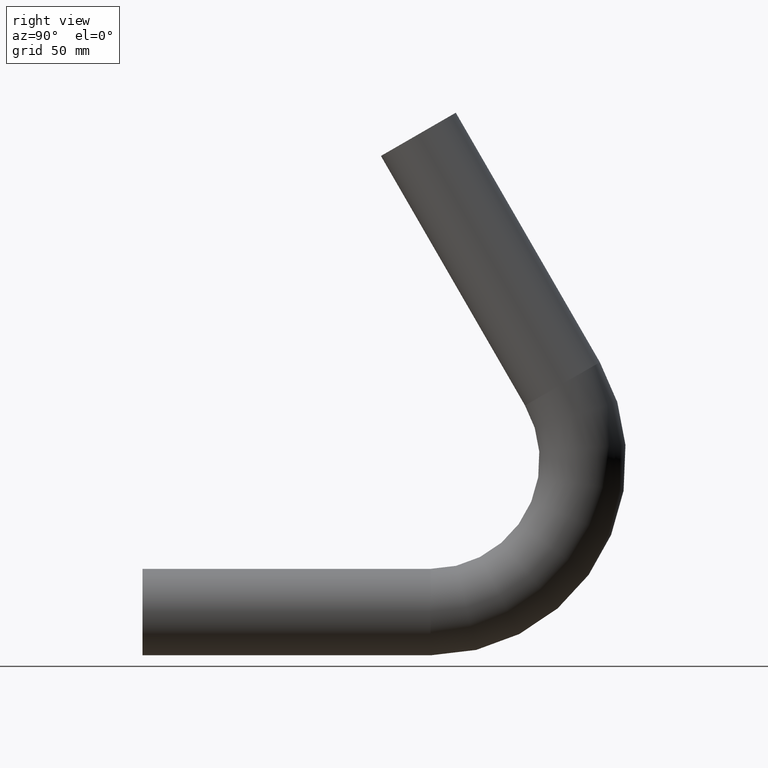
[diagram: clean part render]
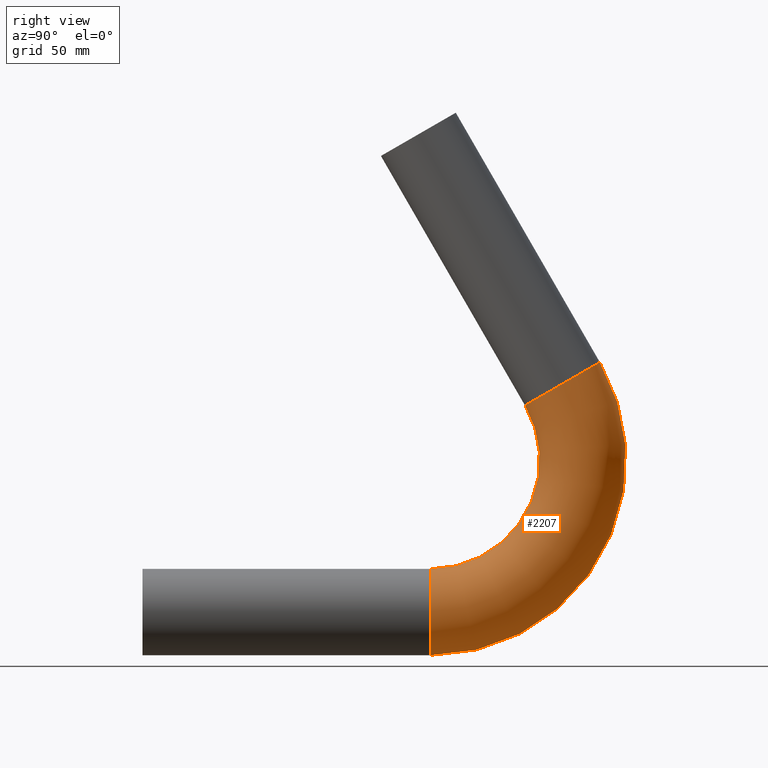
[diagram: same view with one face highlighted and labeled with its STEP entity id]
A machine part, right view. The second image highlights one B-rep face of the part: STEP entity #2207.
In plain terms, the highlighted toroidal blend (fillet) surface has major radius 85 mm and minor (blend) radius 24.15 mm.
Its self-contained STEP definition (entity closure, byte-faithful):
#612 = FACE_OUTER_BOUND ( 'NONE', #11155, .T. ) ;
#707 = AXIS2_PLACEMENT_3D ( 'NONE', #1151, #4861, #3919 ) ;
#911 = CARTESIAN_POINT ( 'NONE',  ( 0.000000000000000000, 160.9882081482890328, 24.15000000000000568 ) ) ;
#1151 = CARTESIAN_POINT ( 'NONE',  ( 0.000000000000000000, 160.9882081482890328, 85.00000000000000000 ) ) ;
#1202 = ORIENTED_EDGE ( 'NONE', *, *, #8185, .F. ) ;
#1234 = AXIS2_PLACEMENT_3D ( 'NONE', #10875, #3334, #6112 ) ;
#1443 = VERTEX_POINT ( 'NONE', #911 ) ;
#1506 = TOROIDAL_SURFACE ( 'NONE', #707, 85.00000000000000000, 24.15000000000000568 ) ;
#1681 = EDGE_LOOP ( 'NONE', ( #1202 ) ) ;
#1751 = VERTEX_POINT ( 'NONE', #4956 ) ;
#2207 = ADVANCED_FACE ( 'NONE', ( #612, #4523 ), #1506, .T. ) ;
#2581 = CARTESIAN_POINT ( 'NONE',  ( 0.000000000000000000, 234.6003674699661588, 127.5000000000003411 ) ) ;
#3334 = DIRECTION ( 'NONE',  ( 0.000000000000000000, 1.000000000000000000, 0.000000000000000000 ) ) ;
#3919 = DIRECTION ( 'NONE',  ( 0.000000000000000000, 0.000000000000000000, -1.000000000000000000 ) ) ;
#4523 = FACE_OUTER_BOUND ( 'NONE', #1681, .T. ) ;
#4861 = DIRECTION ( 'NONE',  ( 1.000000000000000000, 0.000000000000000000, -0.000000000000000000 ) ) ;
#4956 = CARTESIAN_POINT ( 'NONE',  ( 0.000000000000000000, 213.6858539685720189, 115.4250000000002387 ) ) ;
#5626 = EDGE_CURVE ( 'NONE', #1443, #1443, #9004, .T. ) ;
#6022 = ORIENTED_EDGE ( 'NONE', *, *, #5626, .T. ) ;
#6112 = DIRECTION ( 'NONE',  ( 0.000000000000000000, 0.000000000000000000, 1.000000000000000000 ) ) ;
#6523 = DIRECTION ( 'NONE',  ( 0.000000000000000000, -0.8660254037844363761, -0.5000000000000039968 ) ) ;
#8185 = EDGE_CURVE ( 'NONE', #1751, #1751, #10249, .T. ) ;
#9004 = CIRCLE ( 'NONE', #1234, 24.15000000000000568 ) ;
#9691 = AXIS2_PLACEMENT_3D ( 'NONE', #2581, #11165, #6523 ) ;
#10249 = CIRCLE ( 'NONE', #9691, 24.15000000000000568 ) ;
#10875 = CARTESIAN_POINT ( 'NONE',  ( 0.000000000000000000, 160.9882081482890328, -7.464487448530533640E-29 ) ) ;
#11155 = EDGE_LOOP ( 'NONE', ( #6022 ) ) ;
#11165 = DIRECTION ( 'NONE',  ( 0.000000000000000000, -0.5000000000000041078, 0.8660254037844364872 ) ) ;